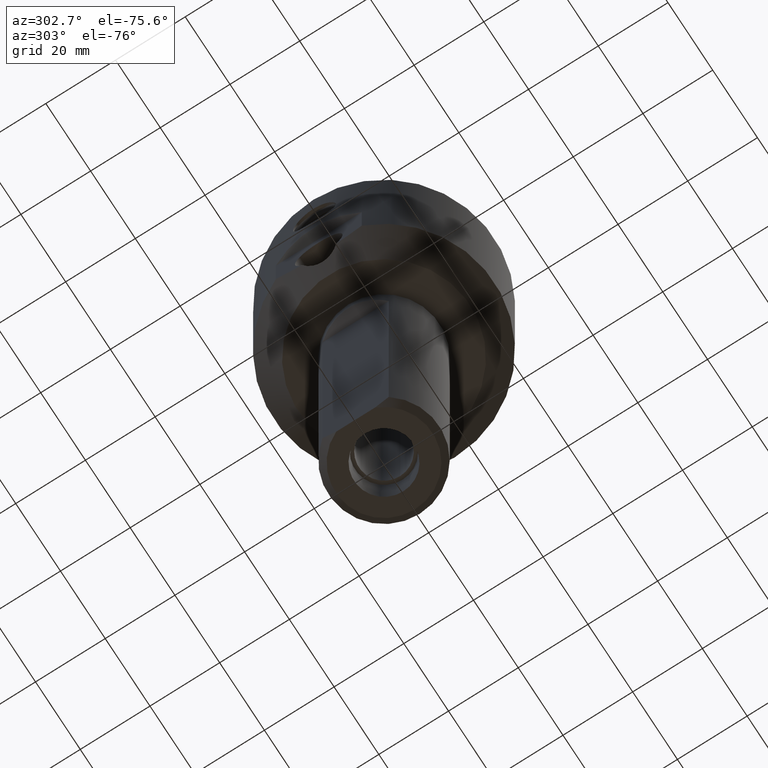
[diagram: clean part render]
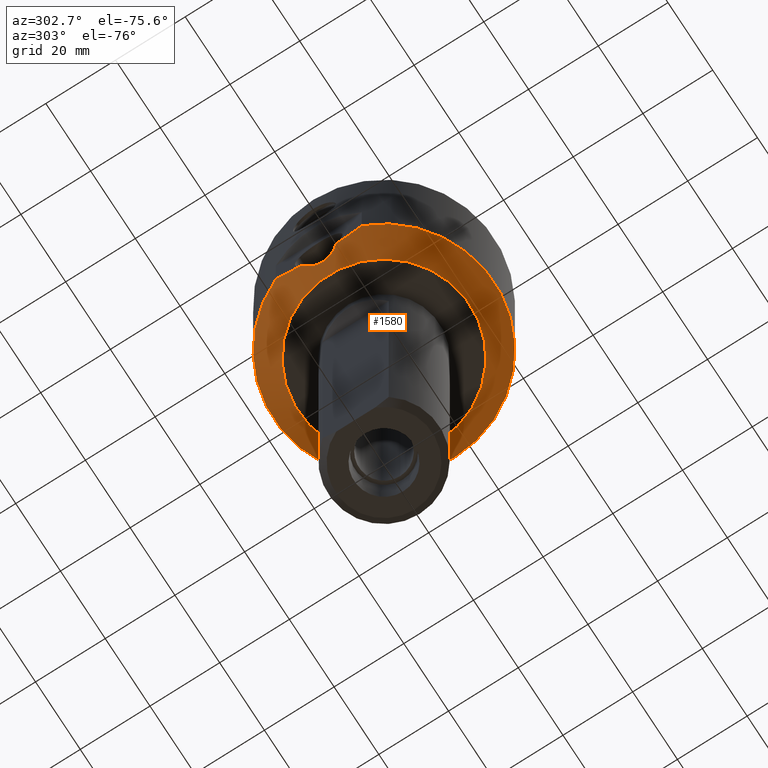
[diagram: same view with one face highlighted and labeled with its STEP entity id]
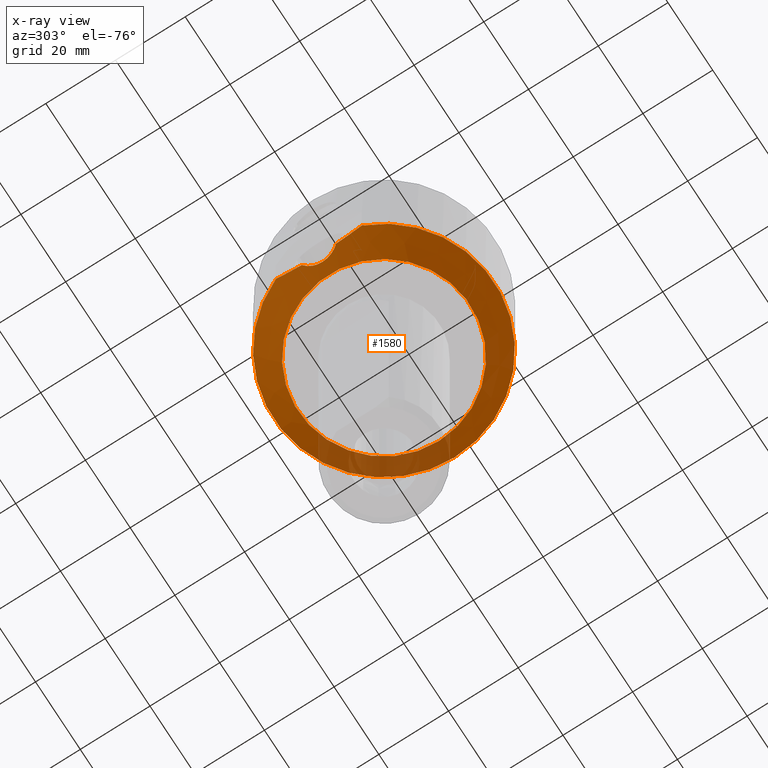
[diagram: x-ray of the same camera — body ghosted, the highlighted face saturated]
A machine part, auxiliary view. The second image highlights one B-rep face of the part: STEP entity #1580.
The next image is the same camera in x-ray: the body ghosted, the highlighted face saturated — about 15% of this face is hidden behind the body in this view.
In plain terms, the highlighted conical surface has half-angle 45 deg.
Its self-contained STEP definition (entity closure, byte-faithful):
#6 = AXIS2_PLACEMENT_3D ( 'NONE', #193, #587, #1549 ) ;
#39 = ORIENTED_EDGE ( 'NONE', *, *, #1354, .F. ) ;
#46 = CARTESIAN_POINT ( 'NONE',  ( -29.13500000000000156, -6.170436145164875263, -45.67976493171396868 ) ) ;
#103 = ORIENTED_EDGE ( 'NONE', *, *, #1310, .F. ) ;
#120 = CARTESIAN_POINT ( 'NONE',  ( -29.13500000000001933, 12.32578597899539652, -43.79999999999999005 ) ) ;
#153 = AXIS2_PLACEMENT_3D ( 'NONE', #372, #1461, #1026 ) ;
#193 = CARTESIAN_POINT ( 'NONE',  ( 0.0000000000000000000, 0.0000000000000000000, -50.79999999999999716 ) ) ;
#223 = FACE_BOUND ( 'NONE', #1179, .T. ) ;
#248 = CARTESIAN_POINT ( 'NONE',  ( -27.82187162789263013, -2.315230899023054345, -47.51781065388625080 ) ) ;
#254 = CARTESIAN_POINT ( 'NONE',  ( -29.13500000000000512, 6.172300948374835450, -45.67945512524126883 ) ) ;
#258 = CARTESIAN_POINT ( 'NONE',  ( -28.27805403236316550, 3.563210942794281078, -46.93393987186635741 ) ) ;
#269 = CARTESIAN_POINT ( 'NONE',  ( -29.13499999999999801, 9.890781248021655259, -44.67229161043078278 ) ) ;
#301 = VERTEX_POINT ( 'NONE', #1381 ) ;
#314 = CARTESIAN_POINT ( 'NONE',  ( -29.13500000000000512, -12.32578597899539830, -43.79999999999999716 ) ) ;
#372 = CARTESIAN_POINT ( 'NONE',  ( 0.0000000000000000000, 0.0000000000000000000, -43.79999999999999005 ) ) ;
#400 = CARTESIAN_POINT ( 'NONE',  ( -27.60022407217857321, 1.200278184235768375, -47.80964497748455955 ) ) ;
#401 = CARTESIAN_POINT ( 'NONE',  ( -29.13500000000000512, -4.908514856564666573, -45.88941245977468952 ) ) ;
#440 = CARTESIAN_POINT ( 'NONE',  ( -29.13500000000000512, -7.419201499962479573, -45.39359722333632874 ) ) ;
#514 = CARTESIAN_POINT ( 'NONE',  ( -29.13500000000000512, -12.32578597899539830, -43.79999999999999716 ) ) ;
#527 = CONICAL_SURFACE ( 'NONE', #1465, 31.63500000000000512, 0.7853981633974498333 ) ;
#530 = DIRECTION ( 'NONE',  ( 1.000000000000000000, 0.0000000000000000000, 0.0000000000000000000 ) ) ;
#587 = DIRECTION ( 'NONE',  ( -0.0000000000000000000, -0.0000000000000000000, -1.000000000000000000 ) ) ;
#629 = EDGE_LOOP ( 'NONE', ( #1527, #103, #1406, #39 ) ) ;
#630 = CARTESIAN_POINT ( 'NONE',  ( -28.10628191249663743, 3.169210081824081371, -47.15121326917378042 ) ) ;
#634 = CARTESIAN_POINT ( 'NONE',  ( -27.57010454546335865, -0.9430849848636203570, -47.84980055774013152 ) ) ;
#647 = FACE_OUTER_BOUND ( 'NONE', #629, .T. ) ;
#648 = CARTESIAN_POINT ( 'NONE',  ( -28.26621634180867915, -3.560182193136036677, -46.94738169472694977 ) ) ;
#703 = CARTESIAN_POINT ( 'NONE',  ( -29.13500000000000867, -11.12539445642427438, -44.26770251298283654 ) ) ;
#769 = CARTESIAN_POINT ( 'NONE',  ( -27.52551174954598068, 0.2495513584254499539, -47.90938673354607857 ) ) ;
#773 = CARTESIAN_POINT ( 'NONE',  ( -29.13500000000000156, 11.72461879510585803, -44.03422974699599024 ) ) ;
#782 = CARTESIAN_POINT ( 'NONE',  ( -28.37053082866354714, 3.750935044365206750, -46.81805383336813975 ) ) ;
#786 = EDGE_CURVE ( 'NONE', #859, #1439, #1280, .T. ) ;
#788 = DIRECTION ( 'NONE',  ( -0.0000000000000000000, -0.0000000000000000000, 1.000000000000000000 ) ) ;
#859 = VERTEX_POINT ( 'NONE', #514 ) ;
#904 = CARTESIAN_POINT ( 'NONE',  ( -28.02773670709417786, 2.964355494557015636, -47.25165643660966452 ) ) ;
#917 = CARTESIAN_POINT ( 'NONE',  ( -28.88858439016317092, -4.613247893158045621, -46.18145745828361726 ) ) ;
#925 = CARTESIAN_POINT ( 'NONE',  ( -27.52492616609309550, -0.2266306587874754308, -47.91017057920471700 ) ) ;
#932 = CARTESIAN_POINT ( 'NONE',  ( 0.0000000000000000000, 0.0000000000000000000, -43.79999999999999005 ) ) ;
#981 = CIRCLE ( 'NONE', #6, 24.63499999999997669 ) ;
#1008 = VERTEX_POINT ( 'NONE', #401 ) ;
#1026 = DIRECTION ( 'NONE',  ( 1.000000000000000000, 0.0000000000000000000, 0.0000000000000000000 ) ) ;
#1038 = CARTESIAN_POINT ( 'NONE',  ( -27.53489291455499099, 0.4872111110528947742, -47.89681383730476938 ) ) ;
#1041 = CARTESIAN_POINT ( 'NONE',  ( -29.13500000000000512, 9.275794440310253464, -44.86479439027544203 ) ) ;
#1050 = CARTESIAN_POINT ( 'NONE',  ( -27.59770031331817108, -1.180788201087107137, -47.81300296937420313 ) ) ;
#1052 = ORIENTED_EDGE ( 'NONE', *, *, #1375, .F. ) ;
#1055 = CARTESIAN_POINT ( 'NONE',  ( -29.13500000000000867, 4.908514856564326401, -45.88941245977504479 ) ) ;
#1056 = CARTESIAN_POINT ( 'NONE',  ( -29.13500000000000512, 11.11493347922117358, -44.25714856644276551 ) ) ;
#1063 = CARTESIAN_POINT ( 'NONE',  ( -27.53372035273004315, -0.4651528671159458339, -47.89838296041202881 ) ) ;
#1108 = CARTESIAN_POINT ( 'NONE',  ( -29.13499999999999801, -9.893950608018712956, -44.68875488735892532 ) ) ;
#1121 = B_SPLINE_CURVE_WITH_KNOTS ( 'NONE', 3,
 ( #120, #773, #1056, #269, #1041, #1337, #254, #1195 ),
 .UNSPECIFIED., .F., .F.,
 ( 4, 2, 2, 4 ),
 ( 0.02408350280861197221, 0.02599435145048144963, 0.02790520009235093052, 0.03172689737608988536 ),
 .UNSPECIFIED. ) ;
#1145 = CARTESIAN_POINT ( 'NONE',  ( -28.88893691595072255, 4.613670306408862665, -46.18103965442304570 ) ) ;
#1149 = CARTESIAN_POINT ( 'NONE',  ( -29.13500000000001933, 12.32578597899539652, -43.79999999999999005 ) ) ;
#1177 = CARTESIAN_POINT ( 'NONE',  ( -27.71492269681726484, -1.870623949249380580, -47.65787271796989444 ) ) ;
#1179 = EDGE_LOOP ( 'NONE', ( #1052 ) ) ;
#1195 = CARTESIAN_POINT ( 'NONE',  ( -29.13500000000000867, 4.908514856564326401, -45.88941245977504479 ) ) ;
#1203 = CARTESIAN_POINT ( 'NONE',  ( -27.71062337898037953, 1.896248842698679882, -47.66337379646019201 ) ) ;
#1237 = CARTESIAN_POINT ( 'NONE',  ( -29.13500000000000512, -4.908514856564666573, -45.88941245977468952 ) ) ;
#1249 = EDGE_CURVE ( 'NONE', #1522, #1008, #1392, .T. ) ;
#1255 = B_SPLINE_CURVE_WITH_KNOTS ( 'NONE', 3,
 ( #1237, #46, #440, #1108, #703, #314 ),
 .UNSPECIFIED., .F., .F.,
 ( 4, 2, 4 ),
 ( 0.04148733940963419964, 0.04530998257043347688, 0.04913262573123276106 ),
 .UNSPECIFIED. ) ;
#1280 = CIRCLE ( 'NONE', #153, 31.63500000000000512 ) ;
#1310 = EDGE_CURVE ( 'NONE', #1439, #1522, #1121, .T. ) ;
#1316 = CARTESIAN_POINT ( 'NONE',  ( -28.66666894213934924, 4.288753859117125700, -46.45114903624514824 ) ) ;
#1324 = CARTESIAN_POINT ( 'NONE',  ( -27.88430235000307178, -2.534009502467997166, -47.43653734088577067 ) ) ;
#1337 = CARTESIAN_POINT ( 'NONE',  ( -29.13500000000000867, 7.421317262977400020, -45.39303420204430495 ) ) ;
#1354 = EDGE_CURVE ( 'NONE', #1008, #859, #1255, .T. ) ;
#1375 = EDGE_CURVE ( 'NONE', #301, #301, #981, .T. ) ;
#1381 = CARTESIAN_POINT ( 'NONE',  ( 24.63499999999997669, 0.0000000000000000000, -50.79999999999999716 ) ) ;
#1392 = B_SPLINE_CURVE_WITH_KNOTS ( 'NONE', 3,
 ( #1690, #1145, #1316, #782, #258, #630, #904, #1734, #1203, #400, #1609, #1038, #769, #925, #1063, #634, #1050, #1450, #1177, #248, #1324, #1596, #648, #1724, #917, #1602 ),
 .UNSPECIFIED., .F., .F.,
 ( 4, 2, 2, 2, 2, 2, 2, 2, 2, 2, 2, 2, 4 ),
 ( 3.872561363677109261E-07, 0.001429766521900844873, 0.002144456154783085534, 0.002859145787665326628, 0.004288525053429814021, 0.005003214686312059886, 0.005717904319194306619, 0.006432593952076551616, 0.007147283584958799216, 0.007861973217841045081, 0.008576662850723290946, 0.01000604211648777574, 0.01143542138225225879 ),
 .UNSPECIFIED. ) ;
#1406 = ORIENTED_EDGE ( 'NONE', *, *, #786, .F. ) ;
#1439 = VERTEX_POINT ( 'NONE', #1149 ) ;
#1450 = CARTESIAN_POINT ( 'NONE',  ( -27.67005641792553661, -1.643793412235635687, -47.71710910704705100 ) ) ;
#1461 = DIRECTION ( 'NONE',  ( -0.0000000000000000000, -0.0000000000000000000, 1.000000000000000000 ) ) ;
#1465 = AXIS2_PLACEMENT_3D ( 'NONE', #932, #788, #530 ) ;
#1522 = VERTEX_POINT ( 'NONE', #1055 ) ;
#1527 = ORIENTED_EDGE ( 'NONE', *, *, #1249, .F. ) ;
#1549 = DIRECTION ( 'NONE',  ( 1.000000000000000000, 0.0000000000000000000, 0.0000000000000000000 ) ) ;
#1580 = ADVANCED_FACE ( 'NONE', ( #647, #223 ), #527, .T. ) ;
#1596 = CARTESIAN_POINT ( 'NONE',  ( -28.09573064141383014, -3.169681556041977100, -47.16398092185382040 ) ) ;
#1602 = CARTESIAN_POINT ( 'NONE',  ( -29.13500000000000512, -4.908514856564666573, -45.88941245977468952 ) ) ;
#1609 = CARTESIAN_POINT ( 'NONE',  ( -27.57207074213826203, 0.9616611504487714290, -47.84717892209908285 ) ) ;
#1690 = CARTESIAN_POINT ( 'NONE',  ( -29.13500000000000867, 4.908514856564326401, -45.88941245977504479 ) ) ;
#1724 = CARTESIAN_POINT ( 'NONE',  ( -28.66270633005970936, -4.282832694652271677, -46.45597477087438421 ) ) ;
#1734 = CARTESIAN_POINT ( 'NONE',  ( -27.81802219540328736, 2.336472792618573102, -47.52193553294878114 ) ) ;